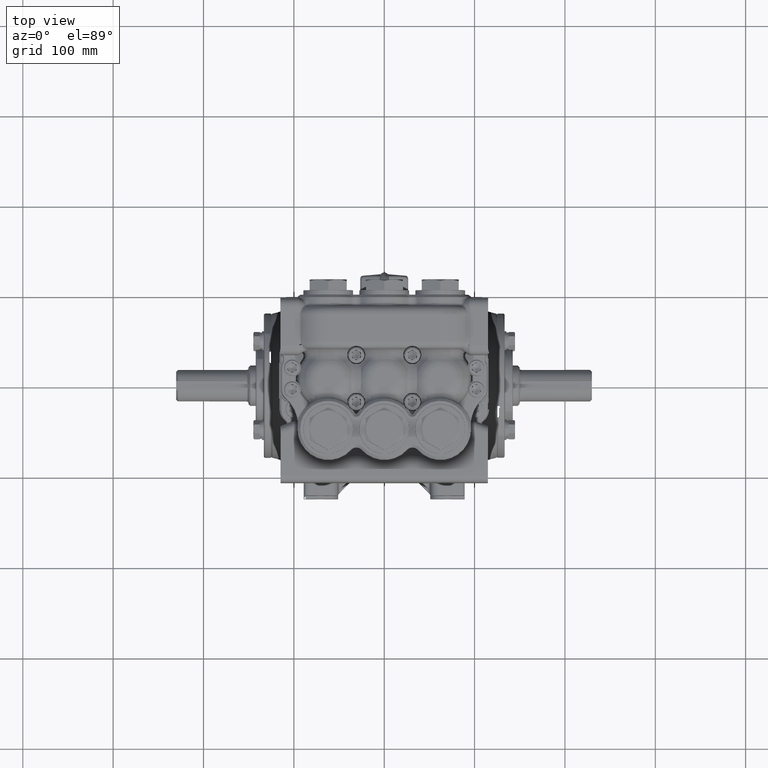
[diagram: clean part render]
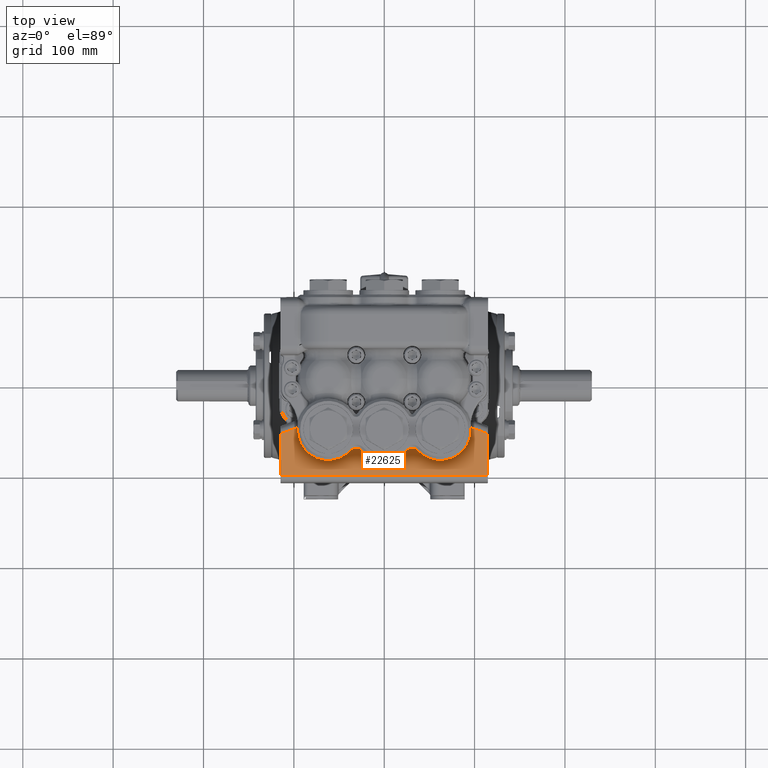
[diagram: same view with one face highlighted and labeled with its STEP entity id]
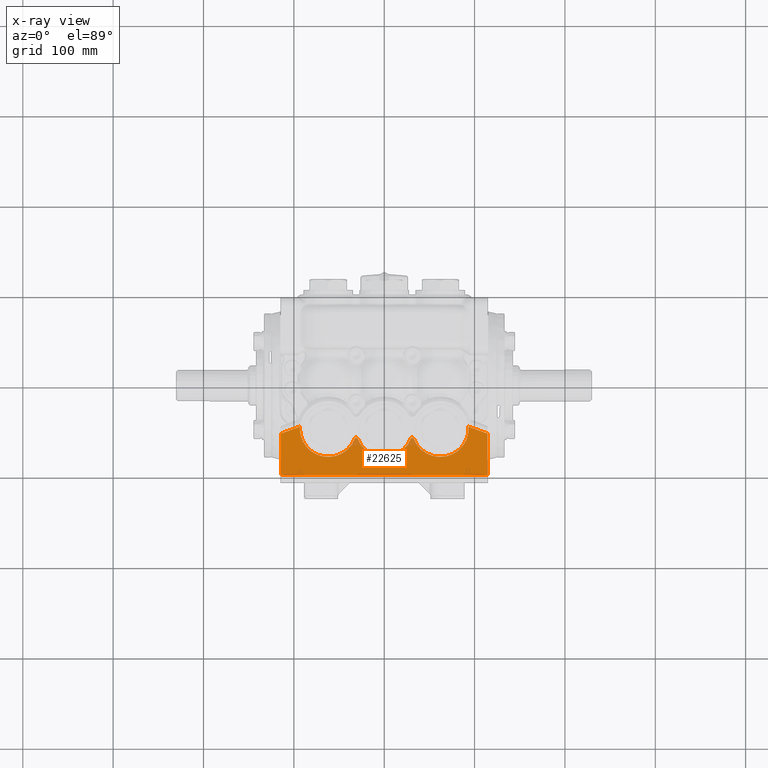
[diagram: x-ray of the same camera — body ghosted, the highlighted face saturated]
A machine part, top view. The second image highlights one B-rep face of the part: STEP entity #22625.
The next image is the same camera in x-ray: the body ghosted, the highlighted face saturated — about 5% of this face is hidden behind the body in this view.
In plain terms, the highlighted planar face has unit normal (0, 0, -1).
Its self-contained STEP definition (entity closure, byte-faithful):
#2687 = CARTESIAN_POINT ( 'NONE',  ( -4.499999999999994671, -4.151464566929133682, 14.78444881889763884 ) ) ;
#4915 = CARTESIAN_POINT ( 'NONE',  ( 4.499999999999995559, -2.346139744903616542, 14.78444881889763884 ) ) ;
#8899 = CARTESIAN_POINT ( 'NONE',  ( -2.440944881889764329, -2.125984251968504157, 14.78444881889763884 ) ) ;
#9662 = CARTESIAN_POINT ( 'NONE',  ( -1.220472440944882386, -2.595029314722647751, 14.78444881889763884 ) ) ;
#10057 = AXIS2_PLACEMENT_3D ( 'NONE', #9662, #51956, #94235 ) ;
#14066 = ORIENTED_EDGE ( 'NONE', *, *, #36303, .T. ) ;
#14642 = LINE ( 'NONE', #56912, #116521 ) ;
#14660 = LINE ( 'NONE', #56930, #116404 ) ;
#17541 = EDGE_LOOP ( 'NONE', ( #97830, #44812, #93848, #43921, #78765, #68371, #39435, #14066, #65315, #86955, #106378 ) ) ;
#19500 = CIRCLE ( 'NONE', #114647, 1.237499999999998490 ) ;
#22625 = ADVANCED_FACE ( 'NONE', ( #133069 ), #38142, .F. ) ;
#24398 = CARTESIAN_POINT ( 'NONE',  ( -2.440944881889764329, -2.125984251968504157, 14.78444881889763884 ) ) ;
#26056 = EDGE_CURVE ( 'NONE', #99922, #122880, #48208, .T. ) ;
#27337 = AXIS2_PLACEMENT_3D ( 'NONE', #88681, #130939, #36044 ) ;
#27740 = DIRECTION ( 'NONE',  ( -1.000000000000000000, 0.0000000000000000000, 0.0000000000000000000 ) ) ;
#29275 = VECTOR ( 'NONE', #122382, 39.37007874015748854 ) ;
#33000 = CARTESIAN_POINT ( 'NONE',  ( 3.675869020038588619, -2.046180599061028449, 14.78444881889763884 ) ) ;
#36044 = DIRECTION ( 'NONE',  ( -1.000000000000000000, 0.0000000000000000000, 0.0000000000000000000 ) ) ;
#36303 = EDGE_CURVE ( 'NONE', #134794, #92298, #113549, .T. ) ;
#36711 = CIRCLE ( 'NONE', #114114, 0.07000000000000007605 ) ;
#37873 = LINE ( 'NONE', #80151, #29275 ) ;
#38142 = PLANE ( 'NONE',  #61106 ) ;
#39435 = ORIENTED_EDGE ( 'NONE', *, *, #134475, .T. ) ;
#41223 = EDGE_CURVE ( 'NONE', #61115, #99922, #14642, .T. ) ;
#42082 = DIRECTION ( 'NONE',  ( 0.0000000000000000000, -0.0000000000000000000, 1.000000000000000000 ) ) ;
#42500 = AXIS2_PLACEMENT_3D ( 'NONE', #108569, #77417, #119673 ) ;
#43921 = ORIENTED_EDGE ( 'NONE', *, *, #57439, .T. ) ;
#44812 = ORIENTED_EDGE ( 'NONE', *, *, #41223, .T. ) ;
#44985 = DIRECTION ( 'NONE',  ( 2.230079994827970186E-16, -1.000000000000000000, 0.0000000000000000000 ) ) ;
#45298 = CARTESIAN_POINT ( 'NONE',  ( -3.675869020038589507, -2.046180599061028449, 14.78444881889763884 ) ) ;
#48208 = LINE ( 'NONE', #90465, #56838 ) ;
#50134 = CARTESIAN_POINT ( 'NONE',  ( -4.499999999999994671, -4.151464566929133682, 14.78444881889763884 ) ) ;
#51196 = DIRECTION ( 'NONE',  ( -0.0000000000000000000, 0.0000000000000000000, -1.000000000000000000 ) ) ;
#51956 = DIRECTION ( 'NONE',  ( 0.0000000000000000000, -0.0000000000000000000, 1.000000000000000000 ) ) ;
#53817 = AXIS2_PLACEMENT_3D ( 'NONE', #8899, #51196, #93460 ) ;
#56838 = VECTOR ( 'NONE', #132731, 39.37007874015748854 ) ;
#56912 = CARTESIAN_POINT ( 'NONE',  ( 4.499999999999993783, -2.351599298417609951, 14.78444881889763884 ) ) ;
#56930 = CARTESIAN_POINT ( 'NONE',  ( 4.514999999999995239, -4.151464566929133682, 14.78444881889763884 ) ) ;
#57439 = EDGE_CURVE ( 'NONE', #122880, #63180, #102214, .T. ) ;
#61106 = AXIS2_PLACEMENT_3D ( 'NONE', #80424, #122663, #27740 ) ;
#61115 = VERTEX_POINT ( 'NONE', #135717 ) ;
#63180 = VERTEX_POINT ( 'NONE', #132699 ) ;
#65315 = ORIENTED_EDGE ( 'NONE', *, *, #90159, .T. ) ;
#66663 = DIRECTION ( 'NONE',  ( -0.0000000000000000000, 0.0000000000000000000, -1.000000000000000000 ) ) ;
#68371 = ORIENTED_EDGE ( 'NONE', *, *, #79458, .T. ) ;
#69780 = CIRCLE ( 'NONE', #10057, 0.07000000000000007605 ) ;
#74337 = EDGE_CURVE ( 'NONE', #87867, #94213, #97643, .T. ) ;
#75391 = CARTESIAN_POINT ( 'NONE',  ( -4.499999999999955591, -2.346139744903601887, 14.78444881889763884 ) ) ;
#77417 = DIRECTION ( 'NONE',  ( -0.0000000000000000000, 0.0000000000000000000, -1.000000000000000000 ) ) ;
#78765 = ORIENTED_EDGE ( 'NONE', *, *, #134888, .T. ) ;
#79458 = EDGE_CURVE ( 'NONE', #99735, #129415, #87107, .T. ) ;
#80151 = CARTESIAN_POINT ( 'NONE',  ( -4.407277120212385491, -2.312391376625483108, 14.78444881889763884 ) ) ;
#80424 = CARTESIAN_POINT ( 'NONE',  ( 4.514999999999995239, -4.466425196850393853, 14.78444881889763884 ) ) ;
#83003 = CARTESIAN_POINT ( 'NONE',  ( -1.285813221722046373, -2.569917915569462696, 14.78444881889763884 ) ) ;
#84370 = DIRECTION ( 'NONE',  ( -1.000000000000000000, 0.0000000000000000000, 0.0000000000000000000 ) ) ;
#86955 = ORIENTED_EDGE ( 'NONE', *, *, #129798, .T. ) ;
#87107 = CIRCLE ( 'NONE', #27337, 1.237499999999998712 ) ;
#87867 = VERTEX_POINT ( 'NONE', #75391 ) ;
#88681 = CARTESIAN_POINT ( 'NONE',  ( -5.463695987328526437E-16, -2.125984251968504157, 14.78444881889763884 ) ) ;
#90159 = EDGE_CURVE ( 'NONE', #92298, #101439, #19500, .T. ) ;
#90465 = CARTESIAN_POINT ( 'NONE',  ( 3.318442503323004278, -1.916087986039104463, 14.78444881889763884 ) ) ;
#92298 = VERTEX_POINT ( 'NONE', #125551 ) ;
#93460 = DIRECTION ( 'NONE',  ( -1.000000000000000000, 0.0000000000000000000, 0.0000000000000000000 ) ) ;
#93848 = ORIENTED_EDGE ( 'NONE', *, *, #26056, .T. ) ;
#94213 = VERTEX_POINT ( 'NONE', #50134 ) ;
#94235 = DIRECTION ( 'NONE',  ( -1.000000000000000000, 0.0000000000000000000, 0.0000000000000000000 ) ) ;
#97643 = LINE ( 'NONE', #2687, #133964 ) ;
#97830 = ORIENTED_EDGE ( 'NONE', *, *, #135207, .T. ) ;
#99172 = DIRECTION ( 'NONE',  ( 2.230079994827970186E-16, 1.000000000000000000, 0.0000000000000000000 ) ) ;
#99189 = DIRECTION ( 'NONE',  ( 1.000000000000000000, 0.0000000000000000000, -0.0000000000000000000 ) ) ;
#99735 = VERTEX_POINT ( 'NONE', #109075 ) ;
#99922 = VERTEX_POINT ( 'NONE', #4915 ) ;
#101439 = VERTEX_POINT ( 'NONE', #45298 ) ;
#102214 = CIRCLE ( 'NONE', #42500, 1.237499999999998490 ) ;
#106378 = ORIENTED_EDGE ( 'NONE', *, *, #74337, .T. ) ;
#108569 = CARTESIAN_POINT ( 'NONE',  ( 2.440944881889763440, -2.125984251968504157, 14.78444881889763884 ) ) ;
#108918 = DIRECTION ( 'NONE',  ( -1.000000000000000000, 0.0000000000000000000, 0.0000000000000000000 ) ) ;
#109075 = CARTESIAN_POINT ( 'NONE',  ( 1.155131660167717511, -2.569917915569462696, 14.78444881889763884 ) ) ;
#113549 = CIRCLE ( 'NONE', #53817, 1.237499999999998490 ) ;
#114114 = AXIS2_PLACEMENT_3D ( 'NONE', #137039, #42082, #84370 ) ;
#114647 = AXIS2_PLACEMENT_3D ( 'NONE', #24398, #66663, #108918 ) ;
#116404 = VECTOR ( 'NONE', #99189, 39.37007874015748143 ) ;
#116521 = VECTOR ( 'NONE', #99172, 39.37007874015748143 ) ;
#119673 = DIRECTION ( 'NONE',  ( -1.000000000000000000, 0.0000000000000000000, 0.0000000000000000000 ) ) ;
#122382 = DIRECTION ( 'NONE',  ( -0.9396926207859083169, -0.3420201433256690460, -0.0000000000000000000 ) ) ;
#122663 = DIRECTION ( 'NONE',  ( 0.0000000000000000000, 0.0000000000000000000, -1.000000000000000000 ) ) ;
#122880 = VERTEX_POINT ( 'NONE', #33000 ) ;
#125305 = CARTESIAN_POINT ( 'NONE',  ( -1.155131660167718399, -2.569917915569462696, 14.78444881889763884 ) ) ;
#125551 = CARTESIAN_POINT ( 'NONE',  ( -3.678444881889762819, -2.125984251968504157, 14.78444881889763884 ) ) ;
#129415 = VERTEX_POINT ( 'NONE', #125305 ) ;
#129798 = EDGE_CURVE ( 'NONE', #101439, #87867, #37873, .T. ) ;
#130939 = DIRECTION ( 'NONE',  ( -0.0000000000000000000, 0.0000000000000000000, -1.000000000000000000 ) ) ;
#132699 = CARTESIAN_POINT ( 'NONE',  ( 1.285813221722045263, -2.569917915569462696, 14.78444881889763884 ) ) ;
#132731 = DIRECTION ( 'NONE',  ( -0.9396926207859083169, 0.3420201433256690460, -0.0000000000000000000 ) ) ;
#133069 = FACE_OUTER_BOUND ( 'NONE', #17541, .T. ) ;
#133964 = VECTOR ( 'NONE', #44985, 39.37007874015748143 ) ;
#134475 = EDGE_CURVE ( 'NONE', #129415, #134794, #69780, .T. ) ;
#134794 = VERTEX_POINT ( 'NONE', #83003 ) ;
#134888 = EDGE_CURVE ( 'NONE', #63180, #99735, #36711, .T. ) ;
#135207 = EDGE_CURVE ( 'NONE', #94213, #61115, #14660, .T. ) ;
#135717 = CARTESIAN_POINT ( 'NONE',  ( 4.499999999999993783, -4.151464566929133682, 14.78444881889763884 ) ) ;
#137039 = CARTESIAN_POINT ( 'NONE',  ( 1.220472440944881276, -2.595029314722647751, 14.78444881889763884 ) ) ;